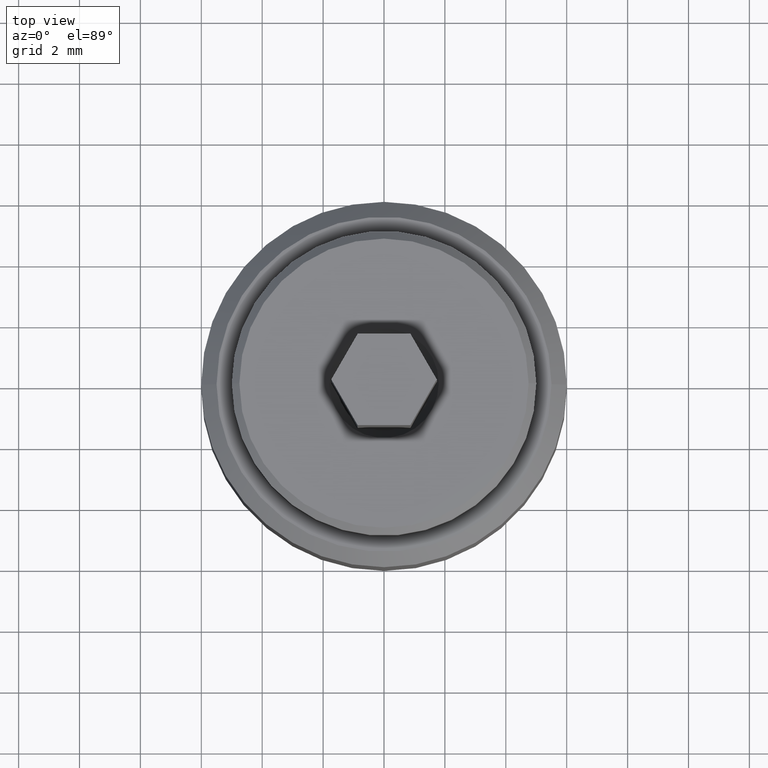
[diagram: clean part render]
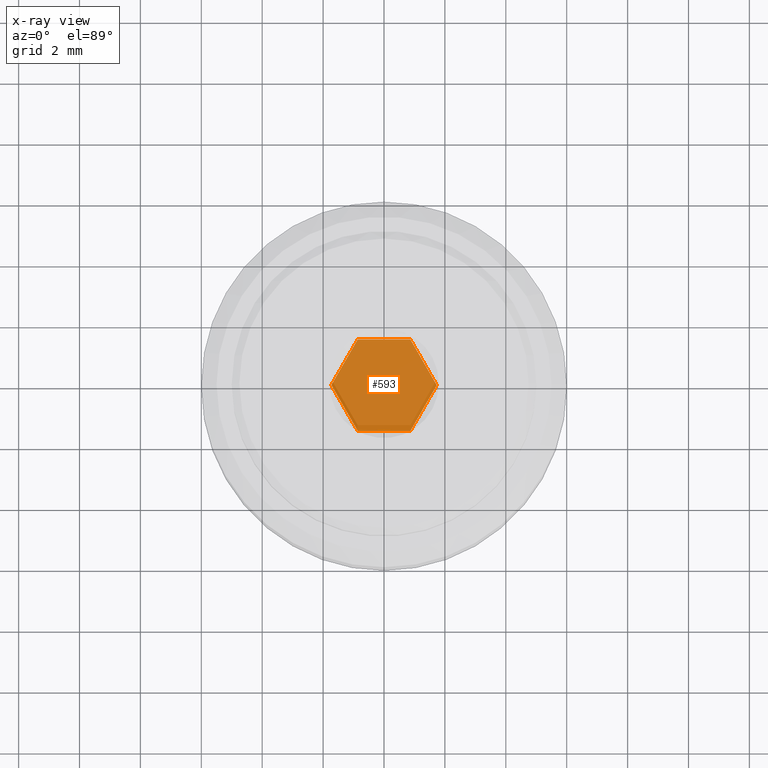
[diagram: x-ray — body ghosted, one internal face saturated and labeled with its STEP entity id]
A machine part, top view, then the same camera in x-ray: the body is ghosted and one INTERNAL B-rep face — a face not visible from any outside direction — is saturated and labeled: STEP entity #593.
In plain terms, the highlighted planar face has unit normal (0, 0, 1).
Its self-contained STEP definition (entity closure, byte-faithful):
#7 = DIRECTION ( 'NONE',  ( 0.4999999999999998890, 0.8660254037844385966, 0.000000000000000000 ) ) ;
#11 = ORIENTED_EDGE ( 'NONE', *, *, #20, .F. ) ;
#20 = EDGE_CURVE ( 'NONE', #801, #167, #60, .T. ) ;
#29 = EDGE_CURVE ( 'NONE', #709, #980, #253, .T. ) ;
#55 = EDGE_CURVE ( 'NONE', #372, #801, #137, .T. ) ;
#60 = LINE ( 'NONE', #490, #611 ) ;
#63 = EDGE_CURVE ( 'NONE', #167, #876, #733, .T. ) ;
#99 = VECTOR ( 'NONE', #718, 1000.000000000000227 ) ;
#123 = VECTOR ( 'NONE', #598, 1000.000000000000000 ) ;
#137 = LINE ( 'NONE', #571, #225 ) ;
#167 = VERTEX_POINT ( 'NONE', #704 ) ;
#172 = ORIENTED_EDGE ( 'NONE', *, *, #954, .F. ) ;
#185 = DIRECTION ( 'NONE',  ( 0.5000000000000001110, -0.8660254037844384856, 0.000000000000000000 ) ) ;
#190 = DIRECTION ( 'NONE',  ( 1.000000000000000000, 0.000000000000000000, 0.000000000000000000 ) ) ;
#209 = VECTOR ( 'NONE', #190, 1000.000000000000000 ) ;
#221 = EDGE_CURVE ( 'NONE', #876, #709, #236, .T. ) ;
#225 = VECTOR ( 'NONE', #644, 1000.000000000000227 ) ;
#236 = LINE ( 'NONE', #296, #254 ) ;
#253 = LINE ( 'NONE', #594, #99 ) ;
#254 = VECTOR ( 'NONE', #7, 1000.000000000000227 ) ;
#277 = CARTESIAN_POINT ( 'NONE',  ( 0.000000000000000000, 0.000000000000000000, 6.000000000000000000 ) ) ;
#280 = ORIENTED_EDGE ( 'NONE', *, *, #55, .F. ) ;
#285 = LINE ( 'NONE', #986, #123 ) ;
#296 = CARTESIAN_POINT ( 'NONE',  ( 0.8660254037844388186, -1.499999999999999778, 6.000000000000000000 ) ) ;
#372 = VERTEX_POINT ( 'NONE', #400 ) ;
#400 = CARTESIAN_POINT ( 'NONE',  ( -0.8660254037844392627, 1.500000000000000000, 6.000000000000000000 ) ) ;
#415 = ORIENTED_EDGE ( 'NONE', *, *, #221, .F. ) ;
#490 = CARTESIAN_POINT ( 'NONE',  ( -1.732050807568877415, 0.000000000000000000, 6.000000000000000000 ) ) ;
#511 = ORIENTED_EDGE ( 'NONE', *, *, #63, .F. ) ;
#571 = CARTESIAN_POINT ( 'NONE',  ( -0.8660254037844392627, 1.500000000000000000, 6.000000000000000000 ) ) ;
#587 = DIRECTION ( 'NONE',  ( 0.000000000000000000, 0.000000000000000000, 1.000000000000000000 ) ) ;
#593 = ADVANCED_FACE ( 'NONE', ( #958 ), #670, .F. ) ;
#594 = CARTESIAN_POINT ( 'NONE',  ( 1.732050807568877415, 3.028886869432292374E-16, 6.000000000000000000 ) ) ;
#598 = DIRECTION ( 'NONE',  ( -1.000000000000000000, 0.000000000000000000, 0.000000000000000000 ) ) ;
#611 = VECTOR ( 'NONE', #185, 1000.000000000000227 ) ;
#644 = DIRECTION ( 'NONE',  ( -0.4999999999999997780, -0.8660254037844387076, 0.000000000000000000 ) ) ;
#649 = ORIENTED_EDGE ( 'NONE', *, *, #29, .F. ) ;
#670 = PLANE ( 'NONE',  #928 ) ;
#704 = CARTESIAN_POINT ( 'NONE',  ( -0.8660254037844383745, -1.499999999999999778, 6.000000000000000000 ) ) ;
#709 = VERTEX_POINT ( 'NONE', #746 ) ;
#718 = DIRECTION ( 'NONE',  ( -0.5000000000000000000, 0.8660254037844385966, 0.000000000000000000 ) ) ;
#733 = LINE ( 'NONE', #872, #209 ) ;
#746 = CARTESIAN_POINT ( 'NONE',  ( 1.732050807568877415, 3.028886869432292374E-16, 6.000000000000000000 ) ) ;
#801 = VERTEX_POINT ( 'NONE', #906 ) ;
#812 = DIRECTION ( 'NONE',  ( 1.000000000000000000, 0.000000000000000000, -0.000000000000000000 ) ) ;
#830 = CARTESIAN_POINT ( 'NONE',  ( 0.8660254037844388186, -1.499999999999999778, 6.000000000000000000 ) ) ;
#872 = CARTESIAN_POINT ( 'NONE',  ( -0.8660254037844383745, -1.499999999999999778, 6.000000000000000000 ) ) ;
#876 = VERTEX_POINT ( 'NONE', #830 ) ;
#905 = EDGE_LOOP ( 'NONE', ( #649, #415, #511, #11, #280, #172 ) ) ;
#906 = CARTESIAN_POINT ( 'NONE',  ( -1.732050807568877415, 0.000000000000000000, 6.000000000000000000 ) ) ;
#910 = CARTESIAN_POINT ( 'NONE',  ( 0.8660254037844388186, 1.500000000000000000, 6.000000000000000000 ) ) ;
#928 = AXIS2_PLACEMENT_3D ( 'NONE', #277, #587, #812 ) ;
#954 = EDGE_CURVE ( 'NONE', #980, #372, #285, .T. ) ;
#958 = FACE_OUTER_BOUND ( 'NONE', #905, .T. ) ;
#980 = VERTEX_POINT ( 'NONE', #910 ) ;
#986 = CARTESIAN_POINT ( 'NONE',  ( 0.8660254037844388186, 1.500000000000000000, 6.000000000000000000 ) ) ;